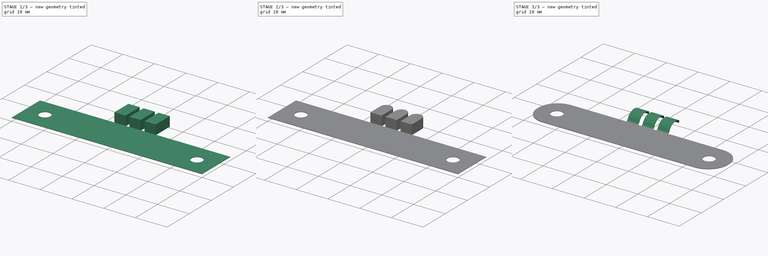
[diagram: build sequence overview — one tinted view per stage of 3, left to right]
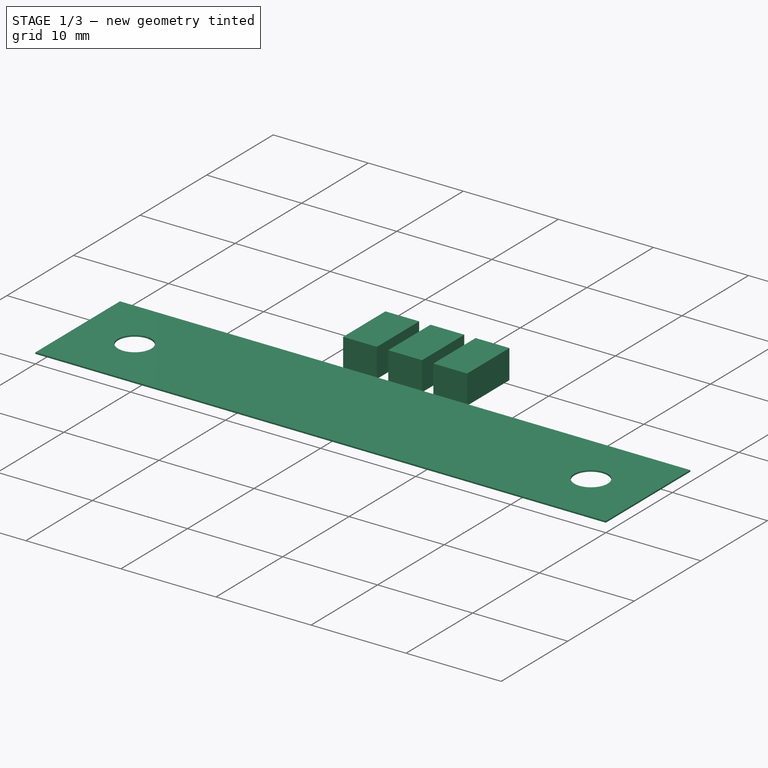
[diagram: stage 1 of 3 — iso view after this stage's code; geometry added in this stage tinted green]
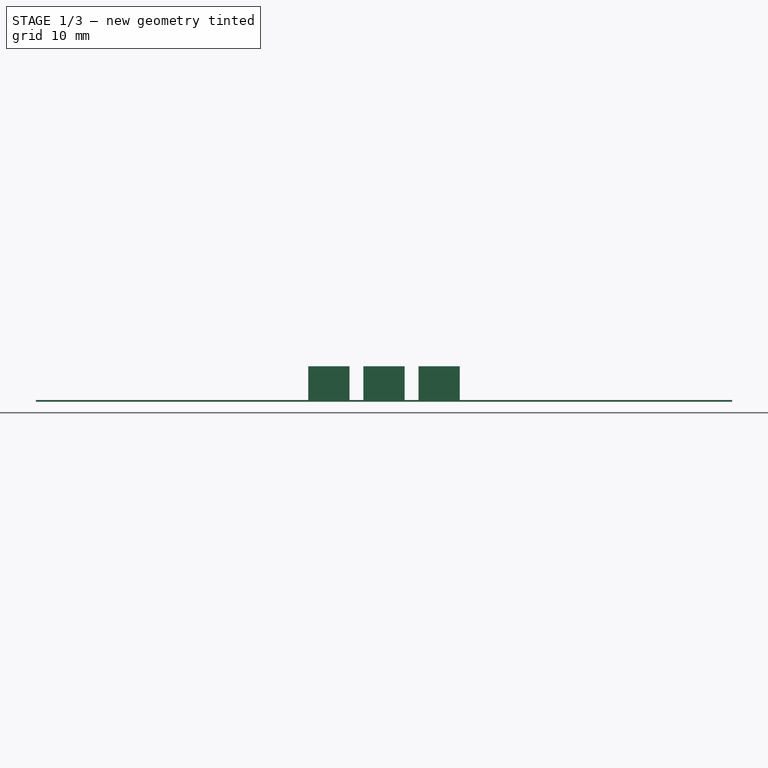
[diagram: stage 1 of 3 — front view after this stage's code; geometry added in this stage tinted green]
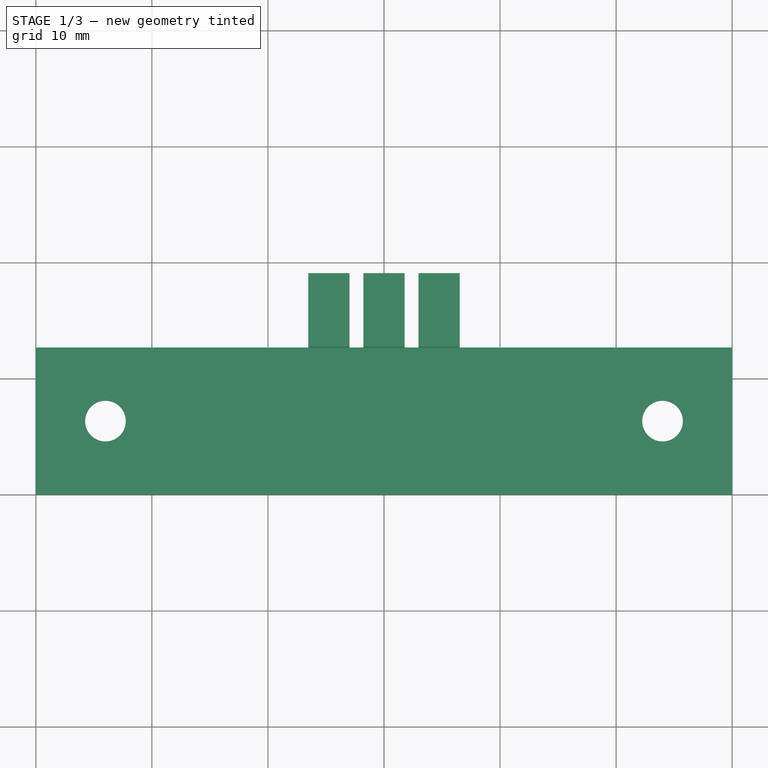
[diagram: stage 1 of 3 — top view after this stage's code; geometry added in this stage tinted green]
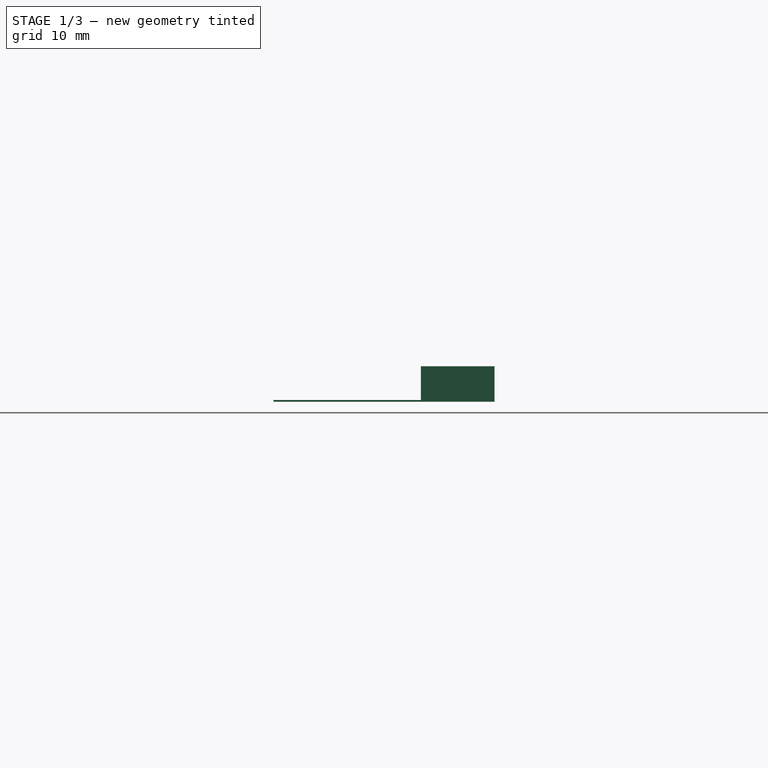
[diagram: stage 1 of 3 — right view after this stage's code; geometry added in this stage tinted green]
FCSTD DOCUMENT  (FreeCAD 0.18R4 (GitTag))
Label: Die_Cut-USB_ESD_Fingers-Syn1
License: All rights reserved
LicenseURL: http://en.wikipedia.org/wiki/All_rights_reserved
objects: Drawing::FeatureView×14, Sketcher::SketchObject×4, PartDesign::Pocket×3, Drawing::FeatureViewPart×2, PartDesign::Pad×1, PartDesign::Fillet×1, PartDesign::Body×1, Drawing::FeaturePage×1
note: 14 computed .brp shape members not serialized (recipe doc carries the construction recipe); baked Part::Feature solids carry a one-line shape summary decoded from their .brp

FEATURE [Sketcher::SketchObject] Sketch
  MapMode = 5
  Support = -> [XY_Plane]
  sketch-geometry (19):
    g0: LineSegment StartX=-30 StartY=0 StartZ=0 EndX=30 EndY=0 EndZ=0
    g1: LineSegment StartX=30 StartY=0 StartZ=0 EndX=30 EndY=12.7 EndZ=0
    g2: LineSegment StartX=30 StartY=12.7 StartZ=0 EndX=6.524 EndY=12.7 EndZ=0
    g3: LineSegment StartX=-30 StartY=12.7 StartZ=0 EndX=-30 EndY=0 EndZ=0
    g4: LineSegment StartX=-2.968 StartY=12.7 StartZ=0 EndX=-2.968 EndY=19.05 EndZ=0
    g5: LineSegment StartX=-2.968 StartY=19.05 StartZ=0 EndX=-6.524 EndY=19.05 EndZ=0
    g6: LineSegment StartX=-6.524 StartY=19.05 StartZ=0 EndX=-6.524 EndY=12.7 EndZ=0
    g7: LineSegment StartX=1.778 StartY=12.7 StartZ=0 EndX=1.778 EndY=19.05 EndZ=0
    g8: LineSegment StartX=1.778 StartY=19.05 StartZ=0 EndX=-1.778 EndY=19.05 EndZ=0
    g9: LineSegment StartX=-1.778 StartY=19.05 StartZ=0 EndX=-1.778 EndY=12.7 EndZ=0
    g10: LineSegment StartX=6.524 StartY=12.7 StartZ=0 EndX=6.524 EndY=19.05 EndZ=0
    g11: LineSegment StartX=6.524 StartY=19.05 StartZ=0 EndX=2.968 EndY=19.05 EndZ=0
    g12: LineSegment StartX=2.968 StartY=19.05 StartZ=0 EndX=2.968 EndY=12.7 EndZ=0
    g13: LineSegment StartX=-6.524 StartY=12.7 StartZ=0 EndX=-30 EndY=12.7 EndZ=0
    g14: LineSegment StartX=2.968 StartY=12.7 StartZ=0 EndX=1.778 EndY=12.7 EndZ=0
    g15: LineSegment StartX=-1.778 StartY=12.7 StartZ=0 EndX=-2.968 EndY=12.7 EndZ=0
    g16: Circle CenterX=-24 CenterY=6.35 CenterZ=0 NormalX=0 NormalY=0 NormalZ=1 AngleXU=0 Radius=1.75
    g17: Circle CenterX=24 CenterY=6.35 CenterZ=0 NormalX=0 NormalY=0 NormalZ=1 AngleXU=0 Radius=1.75
    g18: LineSegment [constr] StartX=-24 StartY=6.35 StartZ=0 EndX=24 EndY=6.35 EndZ=0
  constraints (57):
    c: Coincident(g0,g1)
    c: Coincident(g1,g2)
    c: Coincident(g13,g3)
    c: Coincident(g3,g0)
    c: Horizontal(g0)
    c: Horizontal(g2)
    c: Vertical(g1)
    c: Vertical(g3)
    c: PointOnObject(g0,g-1)
    c: Symmetric(g0,g0,g-2)
    c: Distance(g3) = 12.7
    c: Distance(g0) = 60
    c: Coincident(g4,g5)
    c: Coincident(g5,g6)
    c: Horizontal(g5)
    c: Vertical(g4)
    c: Vertical(g6)
    c: PointOnObject(g6,g2)
    c: Coincident(g7,g8)
    c: Coincident(g8,g9)
    c: Horizontal(g8)
    c: Vertical(g7)
    c: Vertical(g9)
    c: PointOnObject(g9,g2)
    c: Coincident(g10,g11)
    c: Coincident(g11,g12)
    c: Horizontal(g11)
    c: Vertical(g10)
    c: Vertical(g12)
    c: PointOnObject(g12,g2)
    c: Symmetric(g9,g7,g-2)
    c: Symmetric(g4,g12,g-2)
    c: Equal(g8,g5)
    c: Equal(g5,g11)
    c: Distance(g8) = 3.556
    c: Distance(g9) = 6.35
    c: Equal(g4,g9)
    c: Equal(g9,g12)
    c: DistanceX(g4,g8) = 1.19
    c: PointOnObject(g15,g4)
    c: PointOnObject(g13,g6)
    c: Tangent(g2,g13)
    c: PointOnObject(g2,g10)
    c: PointOnObject(g14,g12)
    c: Tangent(g2,g14)
    c: PointOnObject(g14,g7)
    c: PointOnObject(g15,g9)
    c: Tangent(g14,g15)
    c: Coincident(g18,g16)
    c: Coincident(g18,g17)
    c: Horizontal(g18)
    c: Symmetric(g17,g16,g-2)
    c: Equal(g16,g17)
    c: DistanceY(g0,g16) = 6.35
    c: Radius(g17) = 1.75
    c: Distance(g18) = 48
    c: Coincident(g2,g10)
FEATURE [PartDesign::Pad] Pad
  Length = 3.05
  Length2 = 100
  Profile = -> Sketch
  Type = 0
FEATURE [Sketcher::SketchObject] Sketch001
  ExternalGeometry = -> [Pad]
  MapMode = 5
  Placement = pos=(0,0,3.05) rot=(0,0,1;0rad)
  Support = -> [Pad]
  sketch-geometry (4):
    g0: LineSegment StartX=-30.2164 StartY=12.7 StartZ=0 EndX=30 EndY=12.7 EndZ=0
    g1: LineSegment StartX=30 StartY=12.7 StartZ=0 EndX=30 EndY=-0.701505 EndZ=0
    g2: LineSegment StartX=30 StartY=-0.701505 StartZ=0 EndX=-30.2164 EndY=-0.701505 EndZ=0
    g3: LineSegment StartX=-30.2164 StartY=-0.701505 StartZ=0 EndX=-30.2164 EndY=12.7 EndZ=0
  constraints (9):
    c: Coincident(g0,g1)
    c: Coincident(g1,g2)
    c: Coincident(g2,g3)
    c: Coincident(g3,g0)
    c: Horizontal(g0)
    c: Horizontal(g2)
    c: Vertical(g1)
    c: Vertical(g3)
    c: Coincident(g0,g-3)
FEATURE [PartDesign::Pocket] Pocket
  BaseFeature = -> Pad
  Length = 2.9
  Length2 = 100
  Profile = -> Sketch001
  Type = 0
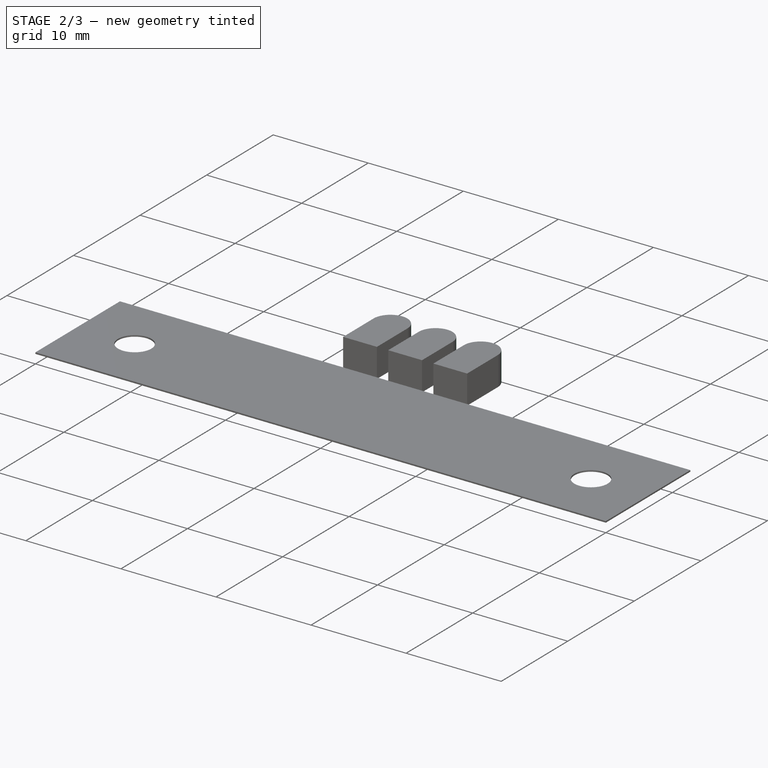
[diagram: stage 2 of 3 — iso view after this stage's code; geometry added in this stage tinted green]
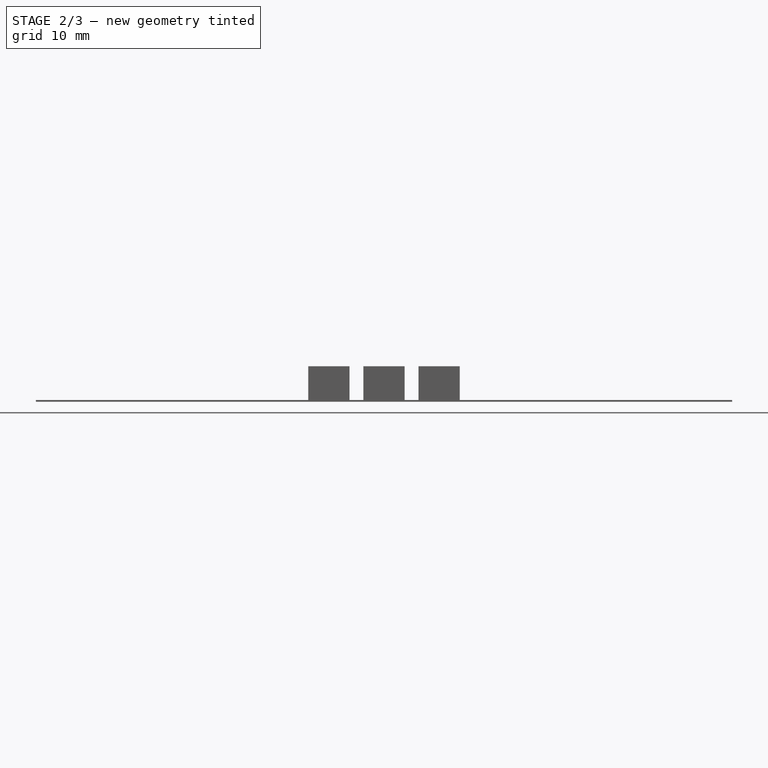
[diagram: stage 2 of 3 — front view after this stage's code; geometry added in this stage tinted green]
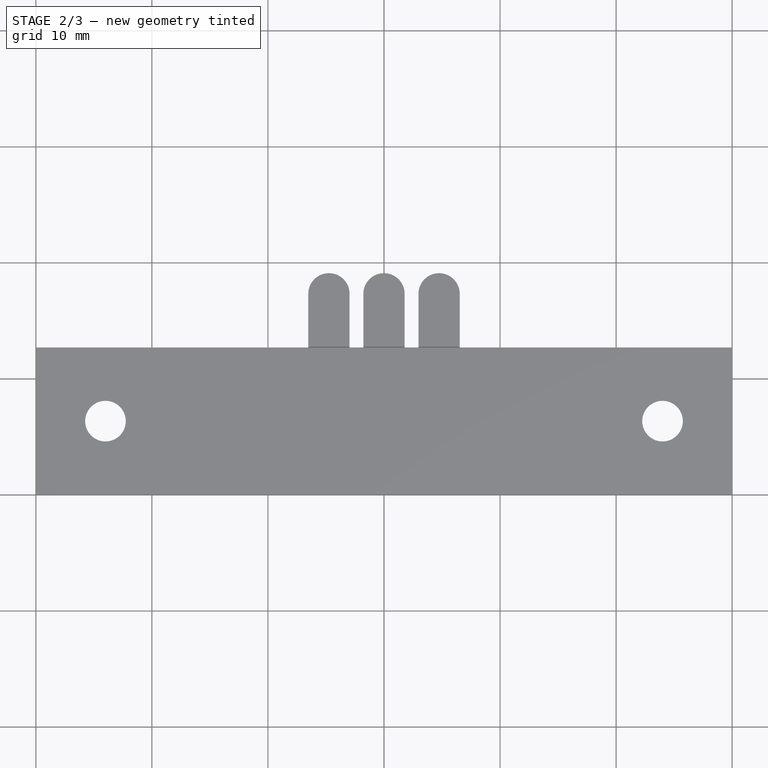
[diagram: stage 2 of 3 — top view after this stage's code; geometry added in this stage tinted green]
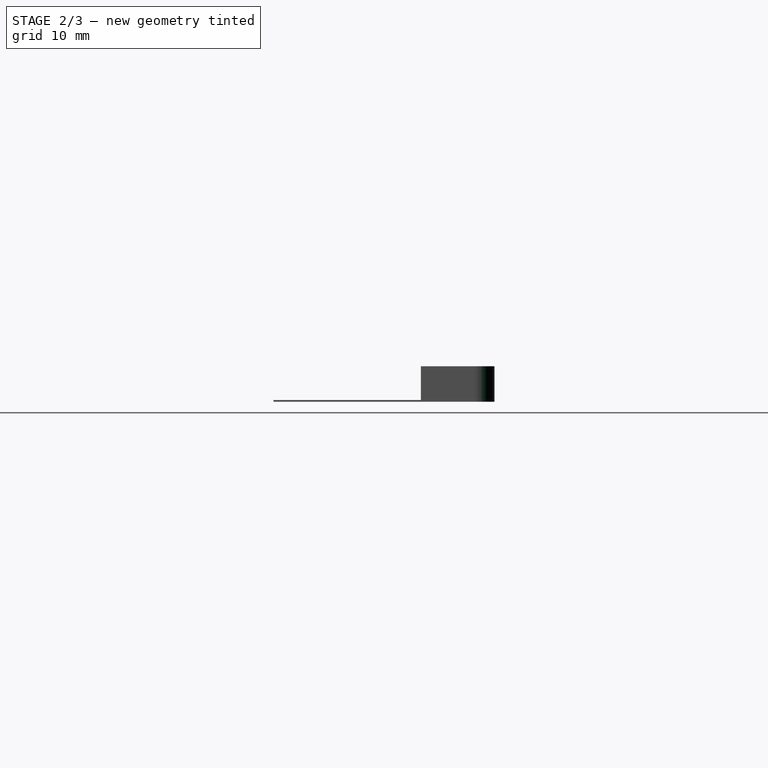
[diagram: stage 2 of 3 — right view after this stage's code; geometry added in this stage tinted green]
FEATURE [Sketcher::SketchObject] Sketch002
  ExternalGeometry = -> [Pocket]
  MapMode = 5
  Placement = pos=(0,0,3.05) rot=(0,0,1;0rad)
  Support = -> [Pocket]
  sketch-geometry (11):
    g0: LineSegment [constr] StartX=-6.524 StartY=17.272 StartZ=0 EndX=6.524 EndY=17.272 EndZ=0
    g1: ArcOfCircle CenterX=-4.746 CenterY=17.272 CenterZ=0 NormalX=0 NormalY=0 NormalZ=1 AngleXU=0 Radius=1.778 StartAngle=0 EndAngle=3.14159
    g2: ArcOfCircle CenterX=0 CenterY=17.272 CenterZ=0 NormalX=0 NormalY=0 NormalZ=1 AngleXU=0 Radius=1.778 StartAngle=0 EndAngle=3.14159
    g3: ArcOfCircle CenterX=4.746 CenterY=17.272 CenterZ=0 NormalX=0 NormalY=0 NormalZ=1 AngleXU=0 Radius=1.778 StartAngle=0 EndAngle=3.14159
    g4: LineSegment StartX=-6.524 StartY=17.272 StartZ=0 EndX=-7.55486 EndY=19.1322 EndZ=0
    g5: LineSegment StartX=6.524 StartY=17.272 StartZ=0 EndX=7.21145 EndY=19.6374 EndZ=0
    g6: LineSegment StartX=2.968 StartY=17.272 StartZ=0 EndX=1.778 EndY=17.272 EndZ=0
    g7: LineSegment StartX=-1.778 StartY=17.272 StartZ=0 EndX=-2.968 EndY=17.272 EndZ=0
    g8: LineSegment StartX=-7.55486 StartY=19.1322 StartZ=0 EndX=-6.34223 EndY=20.5343 EndZ=0
    g9: LineSegment StartX=-6.34223 StartY=20.5343 StartZ=0 EndX=5.6325 EndY=20.5343 EndZ=0
    g10: LineSegment StartX=5.6325 StartY=20.5343 StartZ=0 EndX=7.21145 EndY=19.6374 EndZ=0
  constraints (29):
    c: PointOnObject(g0,g-3)
    c: PointOnObject(g0,g-8)
    c: Horizontal(g0)
    c: PointOnObject(g1,g0)
    c: Coincident(g1,g0)
    c: PointOnObject(g1,g0)
    c: PointOnObject(g2,g0)
    c: PointOnObject(g2,g0)
    c: PointOnObject(g2,g0)
    c: PointOnObject(g3,g0)
    c: PointOnObject(g3,g0)
    c: PointOnObject(g3,g0)
    c: Coincident(g3,g0)
    c: PointOnObject(g3,g-7)
    c: PointOnObject(g2,g-6)
    c: PointOnObject(g1,g-4)
    c: Equal(g1,g2)
    c: Tangent(g2,g-9)
    c: Coincident(g4,g0)
    c: Coincident(g5,g0)
    c: Coincident(g6,g3)
    c: Coincident(g6,g2)
    c: Coincident(g7,g2)
    c: Coincident(g7,g1)
    c: Coincident(g4,g8)
    c: Coincident(g8,g9)
    c: Horizontal(g9)
    c: Coincident(g9,g10)
    c: Coincident(g10,g5)
FEATURE [PartDesign::Pocket] Pocket001
  BaseFeature = -> Pocket
  Length = 5
  Length2 = 100
  Profile = -> Sketch002
  Type = 1
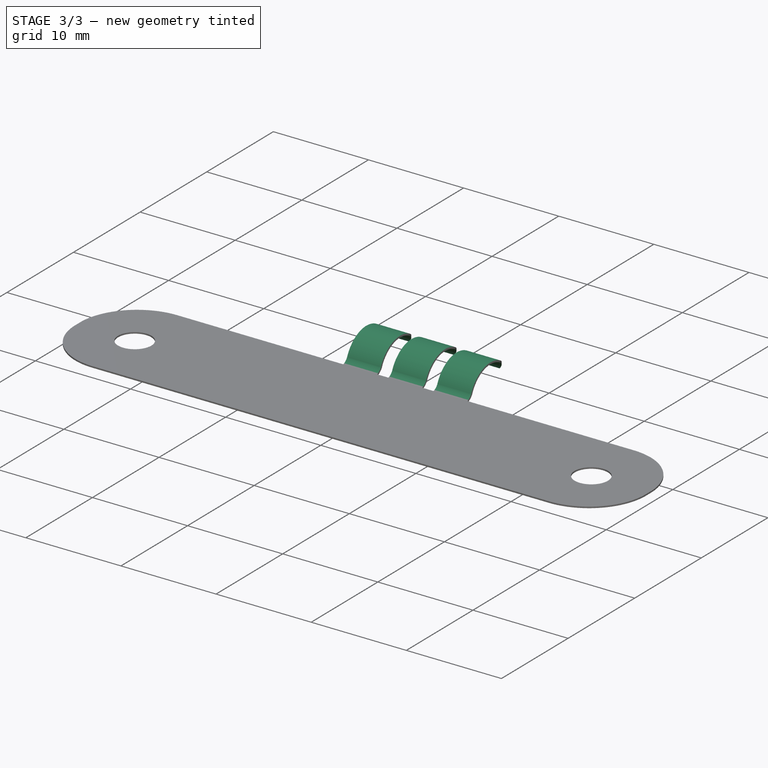
[diagram: stage 3 of 3 — iso view after this stage's code; geometry added in this stage tinted green]
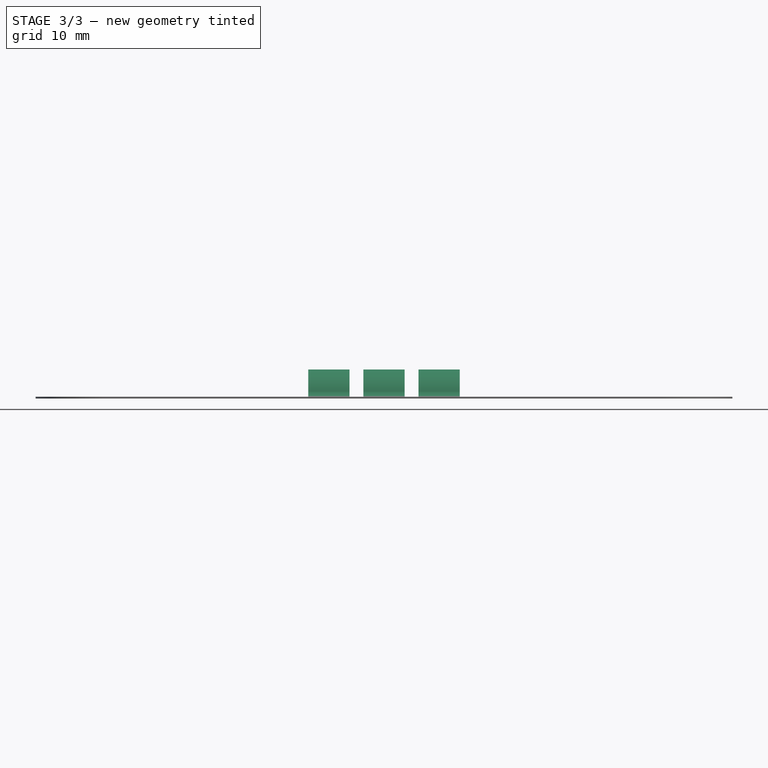
[diagram: stage 3 of 3 — front view after this stage's code; geometry added in this stage tinted green]
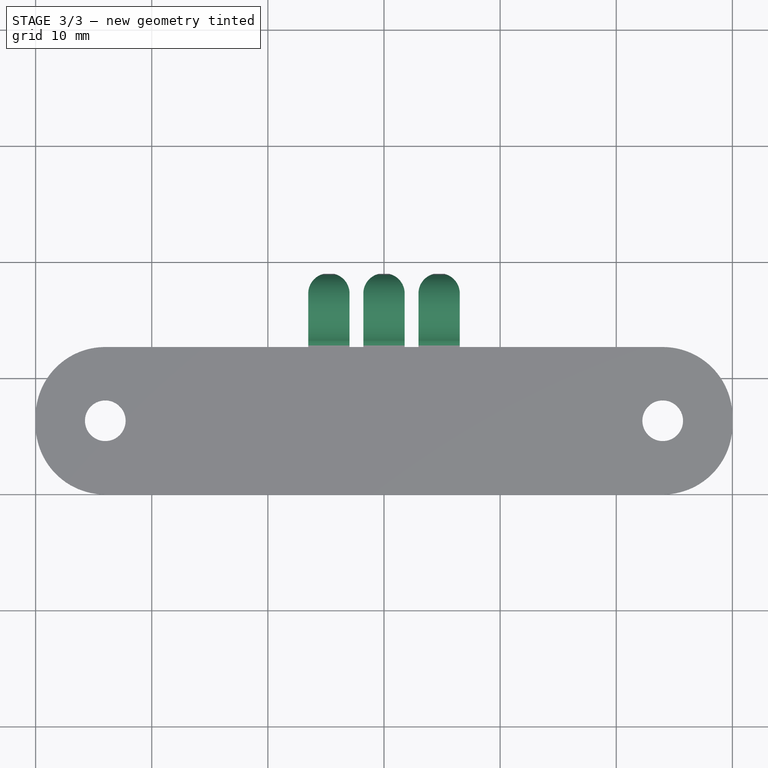
[diagram: stage 3 of 3 — top view after this stage's code; geometry added in this stage tinted green]
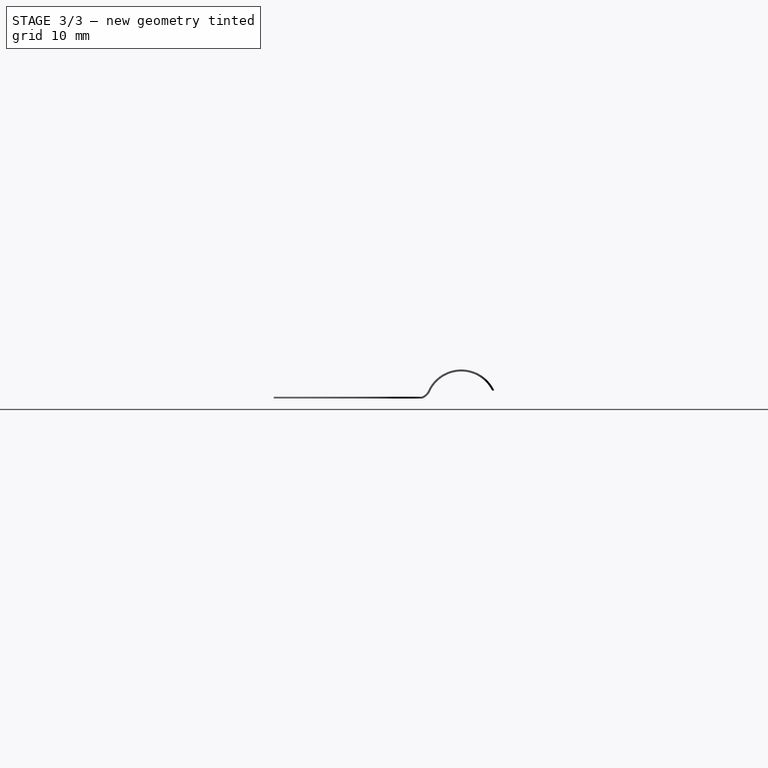
[diagram: stage 3 of 3 — right view after this stage's code; geometry added in this stage tinted green]
FEATURE [Sketcher::SketchObject] Sketch003
  ExternalGeometry = -> [Pocket001]
  MapMode = 5
  Placement = pos=(-6.524,0,0) rot=(0.57735,-0.57735,-0.57735;2.0944rad)
  Support = -> [Pocket001]
  sketch-geometry (10):
    g0: LineSegment StartX=-12.8162 StartY=0 StartZ=0 EndX=-12.8624 EndY=-0.39199 EndZ=0
    g1: LineSegment StartX=-12.8624 StartY=-0.39199 StartZ=0 EndX=-19.9236 EndY=-0.39199 EndZ=0
    g2: LineSegment StartX=-19.9236 StartY=-0.39199 StartZ=0 EndX=-19.9236 EndY=4.29441 EndZ=0
    g3: LineSegment StartX=-19.9236 StartY=4.29441 StartZ=0 EndX=-11.6246 EndY=3.80178 EndZ=0
    g4: LineSegment StartX=-11.6246 StartY=3.80178 StartZ=0 EndX=-12.7 EndY=0.15 EndZ=0
    g5: ArcOfCircle CenterX=-12.2066 CenterY=1.32336 CenterZ=0 NormalX=0 NormalY=0 NormalZ=1 AngleXU=0 Radius=1.45701 StartAngle=3.74767 EndAngle=4.28073
    g6: ArcOfCircle CenterX=-16.1465 CenterY=-0.640491 CenterZ=0 NormalX=0 NormalY=0 NormalZ=1 AngleXU=0 Radius=2.96758 StartAngle=0.392051 EndAngle=2.67729
    g7: ArcOfCircle CenterX=-12.4057 CenterY=1.10076 CenterZ=0 NormalX=0 NormalY=0 NormalZ=1 AngleXU=0 Radius=0.995282 StartAngle=3.68915 EndAngle=4.41216
    g8: ArcOfCircle CenterX=-16.1465 CenterY=-0.640491 CenterZ=0 NormalX=0 NormalY=0 NormalZ=1 AngleXU=0 Radius=3.13916 StartAngle=0.400229 EndAngle=2.70448
    g9: LineSegment StartX=-18.7999 StartY=0.68838 StartZ=0 EndX=-18.9905 EndY=0.68838 EndZ=0
  constraints (16):
    c: PointOnObject(g5,g-1)
    c: Coincident(g5,g0) = 1.5708
    c: Coincident(g0,g1)
    c: Horizontal(g1)
    c: Coincident(g1,g2)
    c: Vertical(g2)
    c: Coincident(g2,g3)
    c: Coincident(g3,g4)
    c: Coincident(g6,g5)
    c: Coincident(g7,g4)
    c: Coincident(g8,g7)
    c: Coincident(g6,g8)
    c: Coincident(g9,g6)
    c: Coincident(g8,g9)
    c: Horizontal(g9)
    c: Coincident(g4,g-4)
FEATURE [PartDesign::Pocket] Pocket002
  BaseFeature = -> Pocket001
  Length = 5
  Length2 = 100
  Profile = -> Sketch003
  Type = 1
FEATURE [PartDesign::Fillet] Fillet
  Base = -> Pocket002 [Edge2,Edge22,Edge34,Edge4]
  BaseFeature = -> Pocket002
  Radius = 6
FEATURE [PartDesign::Body] Body
  Group = -> [Sketch,Pad,Sketch001,Pocket,Sketch002,Pocket001,Sketch003,Pocket002,Fillet]
  Origin = -> Origin
  Tip = -> Fillet
FEATURE [Drawing::FeatureViewPart] Ortho  label="Ortho_0_0"
  Direction = (0,0,1)
  HiddenWidth = 0.15
  LineWidth = 0.35
  Rotation = 0
  Scale = 3
  ShowHiddenLines = false
  ShowSmoothLines = false
  Source = -> Pocket002
  Tolerance = 0.05
  ViewResult = <blob: 5044 chars omitted>
  Visible = true
  X = 129.835
  Y = 109.986
FEATURE [Drawing::FeatureViewPart] Ortho001  label="Ortho_1_0"
  Direction = (1,0,0)
  HiddenWidth = 0.15
  LineWidth = 0.35
  Rotation = 180
  Scale = 3
  ShowHiddenLines = false
  ShowSmoothLines = false
  Source = -> Fillet
  Tolerance = 0.05
  ViewResult = <blob: 2794 chars omitted>
  Visible = true
  X = 257.165
  Y = 109.986
FEATURE [Drawing::FeatureView] dimText001
  Rotation = 0
  ViewResult = <g> <text x="17.618103" y="163.872493" font-family="inherit" font-size="5" fill="rgb(0,0,0)" text-anchor="inherit"  >3. Cut from 187RB1 finger stock</text> </g>
  Visible = true
  X = 0
  Y = 0
FEATURE [Drawing::FeatureView] dimText002
  Rotation = 0
  ViewResult = <g> <text x="12.690191" y="146.465950" font-family="inherit" font-size="6" fill="rgb(0,0,0)" text-anchor="inherit" transform="rotate(0.000000 12.690191,146.465950)" >Notes:</text> </g>
  Visible = true
  X = 0
  Y = 0
FEATURE [Drawing::FeatureView] dimText003
  Rotation = 0
  ViewResult = <g> <text x="17.449012" y="158.363004" font-family="inherit" font-size="5" fill="rgb(0,0,0)" text-anchor="inherit"  >2. Parts must be clean, free of oil and debris</text> </g>
  Visible = true
  X = 0
  Y = 0
FEATURE [Drawing::FeatureView] dimText005
  Rotation = 0
  ViewResult = <g> <text x="17.449012" y="153.604183" font-family="inherit" font-size="5" fill="rgb(0,0,0)" text-anchor="inherit"  >1. Must be RoHS compliant</text> </g>
  Visible = true
  X = 0
  Y = 0
FEATURE [Drawing::FeatureView] dim001
  Rotation = 0
  ViewResult = <g> \n  <line x1="55.835000" y1="71.886000" x2="19.092802" y2="71.886000" style="stroke:rgb(0,0,255);stroke-width:0.20" />\n<line x1="55.835000" y1="109.986000" x2="19.092802" y2="109.986000" style="stroke:rgb(0,0,255);stroke-width:0.20" />\n<line x1="20.092802" y1="71.886000" x2="20.092802" y2="109.986000" style="stroke:rgb(0,0,255);stroke-width:0.20" /> \n  <polygon points="20.092802,109.986000 20.842802,106.986000 20.092802,106.986000 19.342802,106.986000" style="fill:rgb(0,0,255);stroke:rgb(0,0,255);stroke-width:0" /><polygon points="20.092802,71.886000 19.342802,74.886000 20.092802,74.886000 20.842802,74.886000" style="fill:rgb(0,0,255);stroke:rgb(0,0,255);stroke-width:0" /> \n  <text x="19.092802" y="90.936000" font-family="Verdana" font-size="3.6" fill="rgb(0,0,255)" text-anchor="middle" transform="rotate(-90.000000 19.092802,90.936000)" >12.70</text> </g>
  Visible = true
  X = 0
  Y = 0
FEATURE [Drawing::FeatureView] dim002
  Rotation = 0
  ViewResult = <g> \n  <line x1="39.835000" y1="93.986000" x2="39.835000" y2="126.315633" style="stroke:rgb(0,0,255);stroke-width:0.20" />\n<line x1="219.835000" y1="93.986000" x2="219.835000" y2="126.315633" style="stroke:rgb(0,0,255);stroke-width:0.20" />\n<line x1="39.835000" y1="125.315633" x2="219.835000" y2="125.315633" style="stroke:rgb(0,0,255);stroke-width:0.20" /> \n  <polygon points="219.835000,125.315633 216.835000,124.565633 216.835000,125.315633 216.835000,126.065633" style="fill:rgb(0,0,255);stroke:rgb(0,0,255);stroke-width:0" /><polygon points="39.835000,125.315633 42.835000,126.065633 42.835000,125.315633 42.835000,124.565633" style="fill:rgb(0,0,255);stroke:rgb(0,0,255);stroke-width:0" /> \n  <text x="129.835000" y="124.315633" font-family="Verdana" font-size="3.6" fill="rgb(0,0,255)" text-anchor="middle"  >60.00</text> </g>
  Visible = true
  X = 0
  Y = 0
FEATURE [Drawing::FeatureView] dimStack001
  Rotation = 0
  ViewResult = <g> <line x1="57.835000" y1="92.936001" x2="57.835000" y2="118.913021" style="stroke:rgb(0,0,255);stroke-width:0.20" />\n<line x1="39.835000" y1="91.886001" x2="39.835000" y2="118.913021" style="stroke:rgb(0,0,255);stroke-width:0.20" />\n<line x1="57.835000" y1="117.913021" x2="39.835000" y2="117.913021" style="stroke:rgb(0,0,255);stroke-width:0.20" />\n<polygon points="57.835000,117.913021 54.835000,117.163021 54.835000,117.913021 54.835000,118.663021" style="fill:rgb(0,0,255);stroke:rgb(0,0,255);stroke-width:0" />\n<polygon points="39.835000,117.913021 42.835000,118.663021 42.835000,117.913021 42.835000,117.163021" style="fill:rgb(0,0,255);stroke:rgb(0,0,255);stroke-width:0" />\n<text x="48.835000" y="116.913021" font-family="Verdana" font-size="3.6" fill="rgb(0,0,255)" text-anchor="middle"  >6.00</text> </g> 
  Visible = true
  X = 0
  Y = 0
FEATURE [Drawing::FeatureView] dimStack002
  Rotation = 0
  ViewResult = <g> <line x1="55.834999" y1="90.936000" x2="27.817308" y2="90.936000" style="stroke:rgb(0,0,255);stroke-width:0.20" />\n<line x1="55.834999" y1="109.986000" x2="27.817308" y2="109.986000" style="stroke:rgb(0,0,255);stroke-width:0.20" />\n<line x1="28.817308" y1="90.936000" x2="28.817308" y2="109.986000" style="stroke:rgb(0,0,255);stroke-width:0.20" />\n<polygon points="28.817308,90.936000 28.067308,93.936000 28.817308,93.936000 29.567308,93.936000" style="fill:rgb(0,0,255);stroke:rgb(0,0,255);stroke-width:0" />\n<polygon points="28.817308,109.986000 29.567308,106.986000 28.817308,106.986000 28.067308,106.986000" style="fill:rgb(0,0,255);stroke:rgb(0,0,255);stroke-width:0" />\n<text x="27.817308" y="100.461000" font-family="Verdana" font-size="3.6" fill="rgb(0,0,255)" text-anchor="middle" transform="rotate(-90.000000 27.817308,100.461000)" >6.35</text> </g> 
  Visible = true
  X = 0
  Y = 0
FEATURE [Drawing::FeatureView] dimStack004
  Rotation = 0
  ViewResult = <g> <line x1="39.835000" y1="87.885999" x2="39.835000" y2="43.415667" style="stroke:rgb(0,0,255);stroke-width:0.20" />\n<line x1="110.263000" y1="69.885999" x2="110.263000" y2="43.415667" style="stroke:rgb(0,0,255);stroke-width:0.20" />\n<line x1="39.835000" y1="44.415667" x2="110.263000" y2="44.415667" style="stroke:rgb(0,0,255);stroke-width:0.20" />\n<polygon points="39.835000,44.415667 42.835000,45.165667 42.835000,44.415667 42.835000,43.665667" style="fill:rgb(0,0,255);stroke:rgb(0,0,255);stroke-width:0" />\n<polygon points="110.263000,44.415667 107.263000,43.665667 107.263000,44.415667 107.263000,45.165667" style="fill:rgb(0,0,255);stroke:rgb(0,0,255);stroke-width:0" />\n<text x="75.049000" y="43.415667" font-family="Verdana" font-size="3.6" fill="rgb(0,0,255)" text-anchor="middle"  >23.48</text> </g> 
  Visible = true
  X = 0
  Y = 0
FEATURE [Drawing::FeatureView] dimStack005
  Rotation = 0
  ViewResult = <g> <line x1="149.407000" y1="69.885999" x2="149.407000" y2="43.246378" style="stroke:rgb(0,0,255);stroke-width:0.20" />\n<line x1="219.835000" y1="87.885999" x2="219.835000" y2="43.246378" style="stroke:rgb(0,0,255);stroke-width:0.20" />\n<line x1="149.407000" y1="44.246378" x2="219.835000" y2="44.246378" style="stroke:rgb(0,0,255);stroke-width:0.20" />\n<polygon points="149.407000,44.246378 152.407000,44.996378 152.407000,44.246378 152.407000,43.496378" style="fill:rgb(0,0,255);stroke:rgb(0,0,255);stroke-width:0" />\n<polygon points="219.835000,44.246378 216.835000,43.496378 216.835000,44.246378 216.835000,44.996378" style="fill:rgb(0,0,255);stroke:rgb(0,0,255);stroke-width:0" />\n<text x="184.621000" y="43.246378" font-family="Verdana" font-size="3.6" fill="rgb(0,0,255)" text-anchor="middle"  >23.48</text> </g> 
  Visible = true
  X = 0
  Y = 0
FEATURE [Drawing::FeatureView] dimStack006
  Rotation = 0
  ViewResult = <g> <line x1="201.835000" y1="92.936001" x2="201.835000" y2="118.856260" style="stroke:rgb(0,0,255);stroke-width:0.20" />\n<line x1="219.835000" y1="91.886001" x2="219.835000" y2="118.856260" style="stroke:rgb(0,0,255);stroke-width:0.20" />\n<line x1="201.835000" y1="117.856260" x2="219.835000" y2="117.856260" style="stroke:rgb(0,0,255);stroke-width:0.20" />\n<polygon points="201.835000,117.856260 204.835000,118.606260 204.835000,117.856260 204.835000,117.106260" style="fill:rgb(0,0,255);stroke:rgb(0,0,255);stroke-width:0" />\n<polygon points="219.835000,117.856260 216.835000,117.106260 216.835000,117.856260 216.835000,118.606260" style="fill:rgb(0,0,255);stroke:rgb(0,0,255);stroke-width:0" />\n<text x="210.835000" y="116.856260" font-family="Verdana" font-size="3.6" fill="rgb(0,0,255)" text-anchor="middle"  >6.00</text> </g> 
  Visible = true
  X = 0
  Y = 0
FEATURE [Drawing::FeatureView] centerLines001
  Rotation = 0
  ViewResult = <g transform="scale(3.000000,3.000000)" stroke="rgb(0,0,255)"  stroke-width="0.100000" > <path d="M 19.278333,30.312000 L 19.945000,30.312000 M 20.611667,30.312000 L 22.611667,30.312000 M 23.278333,30.312000 L 23.945000,30.312000 M 24.611667,30.312000 L 26.611667,30.312000 M 27.278333,30.312000 L 27.945000,30.312000 M 28.611667,30.312000 L 30.611667,30.312000 M 31.278333,30.312000 L 31.945000,30.312000 M 32.611667,30.312000 L 34.611667,30.312000 M 35.278333,30.312000 L 35.945000,30.312000 M 36.611667,30.312000 L 38.611667,30.312000 M 39.278333,30.312000 L 39.945000,30.312000 M 40.611667,30.312000 L 42.611667,30.312000 M 43.278333,30.312000 L 43.945000,30.312000 M 44.611667,30.312000 L 46.611667,30.312000 M 47.278333,30.312000 L 47.945000,30.312000 M 48.611667,30.312000 L 50.611667,30.312000 M 51.278333,30.312000 L 51.945000,30.312000 M 52.611667,30.312000 L 54.611667,30.312000 M 55.278333,30.312000 L 55.945000,30.312000 M 56.611667,30.312000 L 58.611667,30.312000 M 59.278333,30.312000 L 59.945000,30.312000 M 60.611667,30.312000 L 62.611667,30.312000 M 63.278333,30.312000 L 63.945000,30.312000 M 64.611667,30.312000 L 66.611667,30.312000 M 67.278333,30.312000 L 67.504764,30.312000 "/>\n<path d="M 19.278333,30.312000 L 18.611667,30.312000 "/> </g> 
  Visible = true
  X = 0
  Y = 0
FEATURE [Drawing::FeatureView] dim003
  Rotation = 0
  ViewResult = <g>  <circle cx ="201.835000" cy ="90.936000" r="0.500000" stroke="none" fill="rgb(0,0,255)" /> \n<line x1="231.690122" y1="120.189251" x2="201.835000" y2="90.936000" style="stroke:rgb(0,0,255);stroke-width:0.20" />\n<polygon points="205.584917,94.610319 203.967010,91.975006 203.442107,92.510708 202.917204,93.046411" style="fill:rgb(0,0,255);stroke:rgb(0,0,255);stroke-width:0" />\n<line x1="231.690122" y1="120.189251" x2="265.236921" y2="120.189251" style="stroke:rgb(0,0,255);stroke-width:0.20" />\n<text x="248.463522" y="119.189251" font-family="Verdana" font-size="3.6" fill="rgb(0,0,255)" text-anchor="middle"  >2X R1.75</text> </g>
  Visible = true
  X = 0
  Y = 0
FEATURE [Drawing::FeatureView] dimText004
  Rotation = 0
  ViewResult = <g> <text x="17.376759" y="169.182058" font-family="inherit" font-size="5" fill="rgb(0,0,0)" text-anchor="inherit"  >4. Finish: Clean and Bright </text> </g>
  Visible = true
  X = 0
  Y = 0
FEATURE [Drawing::FeaturePage] Page
  EditableTexts = West | 01/16/2020 | CHECKED | XX/XX/XXXX | Die Cut, USB ESD Fingers, Syn1 | 100073 | Note 3 | IR | 1 OF 1
  Group = -> [Ortho,Ortho001,dimText001,dimText002,dimText003,dimText005,dim001,dim002,dimStack001,dimStack002,dimStack004,dimStack005,dimStack006,centerLines001,dim003,dimText004]
  Template = <userpath>/Desktop/drawing templates/A4_Page1_attribution.svg
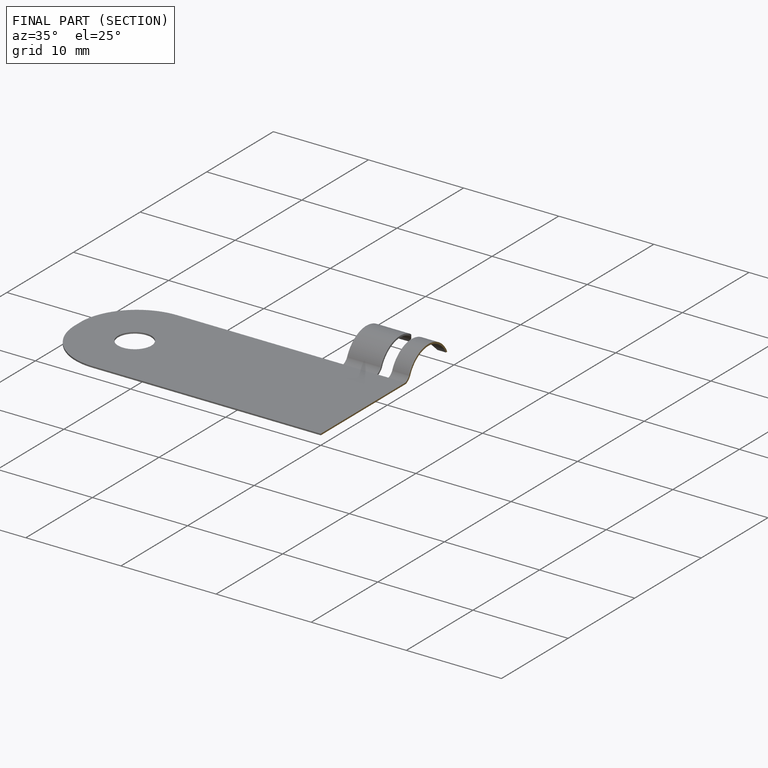
[diagram: finished part — half-section view (interior)]
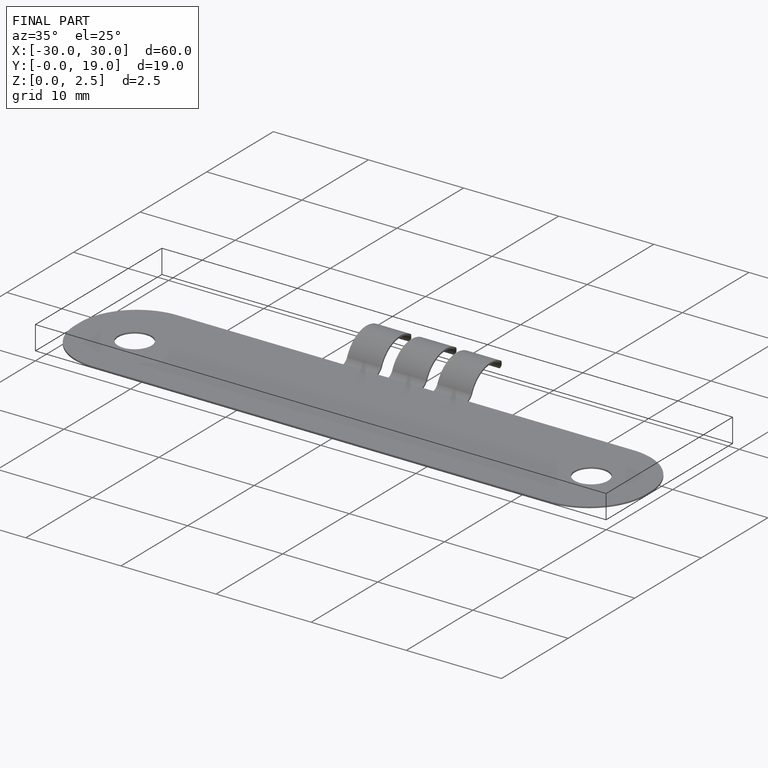
[diagram: finished part — iso view with bounding-box wireframe]
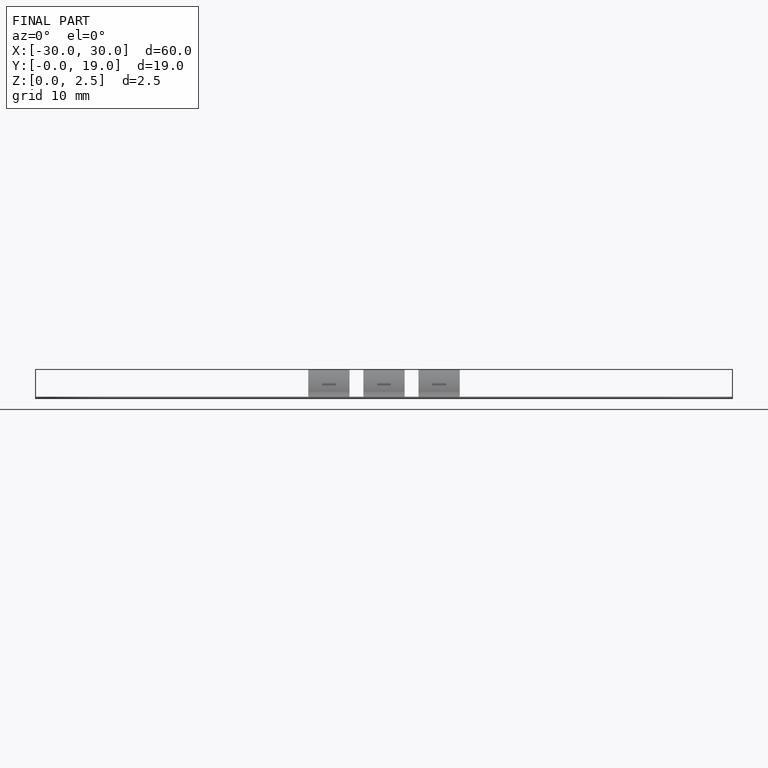
[diagram: finished part — front view with bounding-box wireframe]
